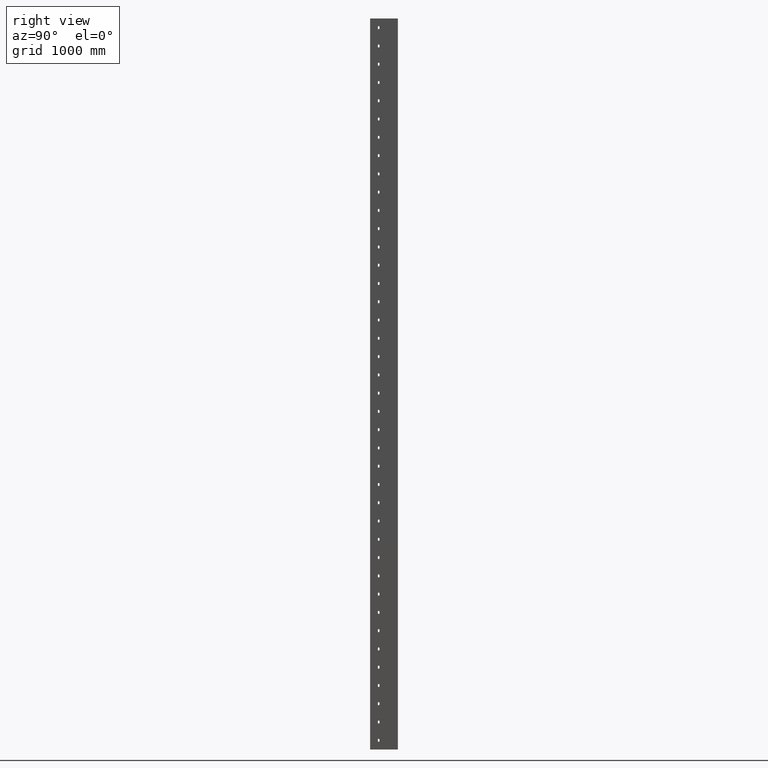
[diagram: clean part render]
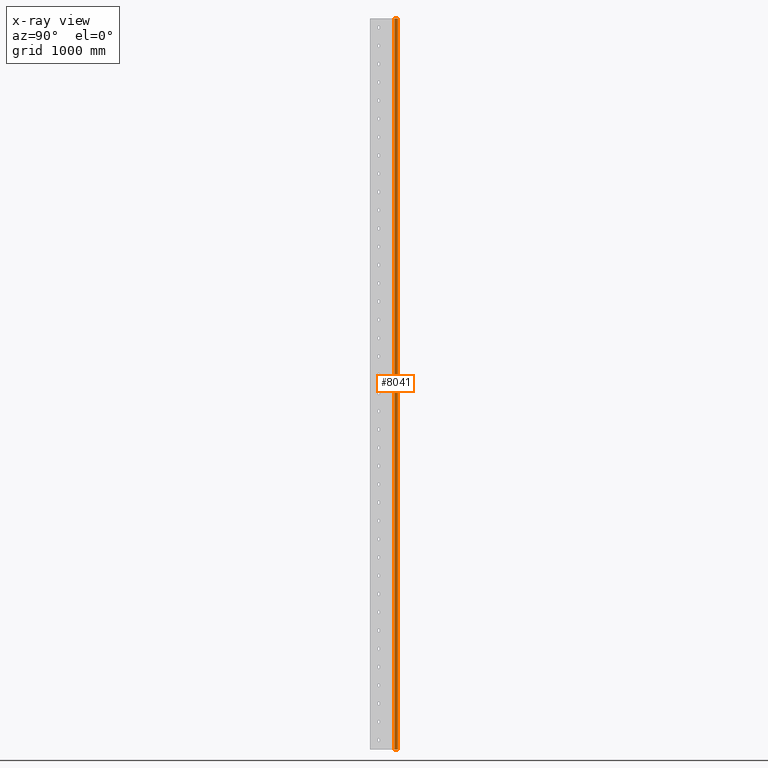
[diagram: x-ray — body ghosted, one internal face saturated and labeled with its STEP entity id]
A machine part, right view, then the same camera in x-ray: the body is ghosted and one INTERNAL B-rep face — a face not visible from any outside direction — is saturated and labeled: STEP entity #8041.
In plain terms, the highlighted planar face has unit normal (-1, -0, 0).
Its self-contained STEP definition (entity closure, byte-faithful):
#269 = CARTESIAN_POINT ( 'NONE',  ( 9.196404079704755900, 226.3017889187491700, 3000.000000000000000 ) ) ;
#710 = AXIS2_PLACEMENT_3D ( 'NONE', #4571, #1426, #14835 ) ;
#1426 = DIRECTION ( 'NONE',  ( -1.000000000000000000, -6.044332668908734500E-017, 0.0000000000000000000 ) ) ;
#1427 = DIRECTION ( 'NONE',  ( -0.0000000000000000000, -0.0000000000000000000, -1.000000000000000000 ) ) ;
#1670 = VECTOR ( 'NONE', #2602, 1000.000000000000000 ) ;
#1897 = LINE ( 'NONE', #12875, #1670 ) ;
#2392 = VERTEX_POINT ( 'NONE', #13707 ) ;
#2602 = DIRECTION ( 'NONE',  ( -6.044332668908734500E-017, 1.000000000000000000, 0.0000000000000000000 ) ) ;
#2830 = CARTESIAN_POINT ( 'NONE',  ( 9.196404079704757700, 197.6017889187491500, 3000.000000000000000 ) ) ;
#2891 = DIRECTION ( 'NONE',  ( -0.0000000000000000000, -0.0000000000000000000, -1.000000000000000000 ) ) ;
#4021 = ORIENTED_EDGE ( 'NONE', *, *, #12229, .T. ) ;
#4433 = CARTESIAN_POINT ( 'NONE',  ( 9.196404079704755900, 226.3017889187491700, 3000.000000000000000 ) ) ;
#4571 = CARTESIAN_POINT ( 'NONE',  ( 9.196404079704770100, 5.558612561544510900E-016, 3000.000000000000000 ) ) ;
#4809 = CARTESIAN_POINT ( 'NONE',  ( 9.196404079704757700, 197.6017889187491500, 3000.000000000000000 ) ) ;
#5905 = VERTEX_POINT ( 'NONE', #269 ) ;
#6143 = ORIENTED_EDGE ( 'NONE', *, *, #14102, .T. ) ;
#6934 = LINE ( 'NONE', #9788, #15708 ) ;
#6955 = LINE ( 'NONE', #4433, #8350 ) ;
#7245 = VECTOR ( 'NONE', #1427, 1000.000000000000000 ) ;
#8041 = ADVANCED_FACE ( 'NONE', ( #17148 ), #13343, .F. ) ;
#8350 = VECTOR ( 'NONE', #2891, 1000.000000000000000 ) ;
#9406 = VERTEX_POINT ( 'NONE', #4809 ) ;
#9788 = CARTESIAN_POINT ( 'NONE',  ( 9.196404079704770100, 5.558612561544510900E-016, 3000.000000000000000 ) ) ;
#9797 = EDGE_LOOP ( 'NONE', ( #6143, #13185, #10556, #4021 ) ) ;
#10556 = ORIENTED_EDGE ( 'NONE', *, *, #15822, .F. ) ;
#11133 = DIRECTION ( 'NONE',  ( -6.044332668908734500E-017, 1.000000000000000000, 0.0000000000000000000 ) ) ;
#11181 = LINE ( 'NONE', #2830, #7245 ) ;
#12229 = EDGE_CURVE ( 'NONE', #9406, #15044, #11181, .T. ) ;
#12875 = CARTESIAN_POINT ( 'NONE',  ( 9.196404079704770100, 5.558612561544510900E-016, -3000.000000000000000 ) ) ;
#13185 = ORIENTED_EDGE ( 'NONE', *, *, #16330, .F. ) ;
#13343 = PLANE ( 'NONE',  #710 ) ;
#13707 = CARTESIAN_POINT ( 'NONE',  ( 9.196404079704755900, 226.3017889187491700, -3000.000000000000000 ) ) ;
#14102 = EDGE_CURVE ( 'NONE', #15044, #2392, #1897, .T. ) ;
#14721 = CARTESIAN_POINT ( 'NONE',  ( 9.196404079704757700, 197.6017889187491500, -3000.000000000000000 ) ) ;
#14835 = DIRECTION ( 'NONE',  ( 6.044332668908734500E-017, -1.000000000000000000, 0.0000000000000000000 ) ) ;
#15044 = VERTEX_POINT ( 'NONE', #14721 ) ;
#15708 = VECTOR ( 'NONE', #11133, 1000.000000000000000 ) ;
#15822 = EDGE_CURVE ( 'NONE', #9406, #5905, #6934, .T. ) ;
#16330 = EDGE_CURVE ( 'NONE', #5905, #2392, #6955, .T. ) ;
#17148 = FACE_OUTER_BOUND ( 'NONE', #9797, .T. ) ;